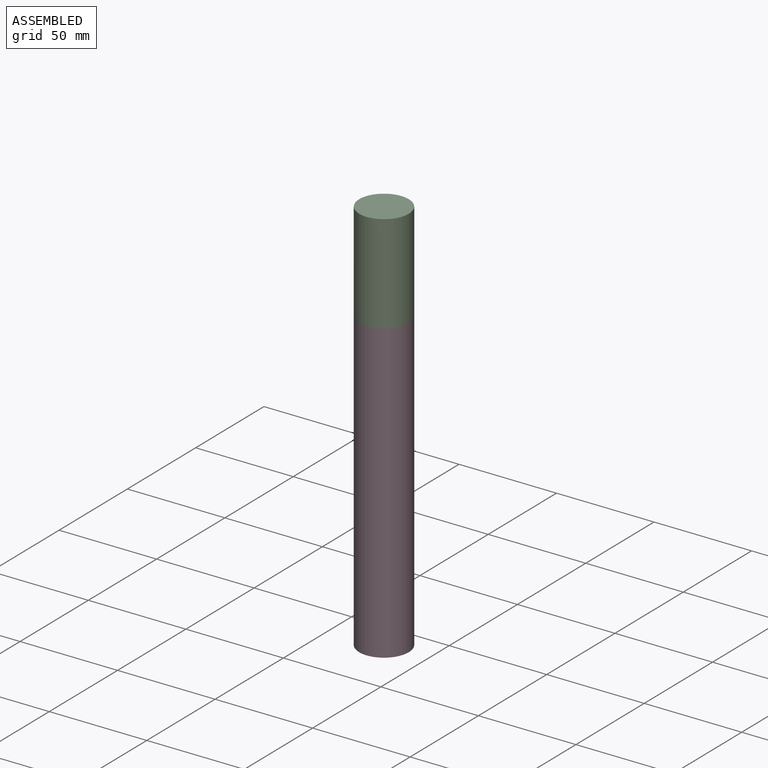
[diagram: assembled view]
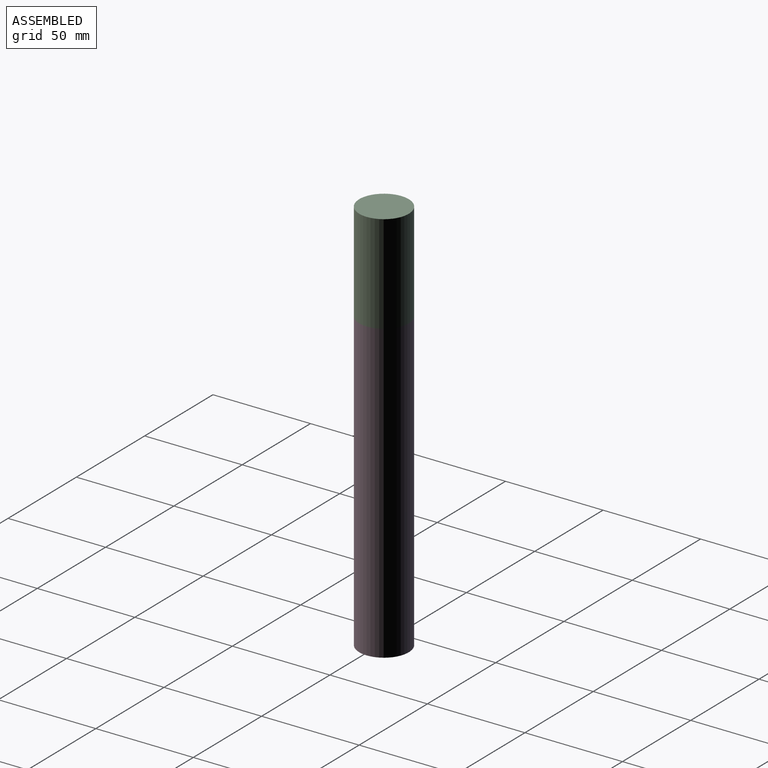
[diagram: assembled view, second angle]
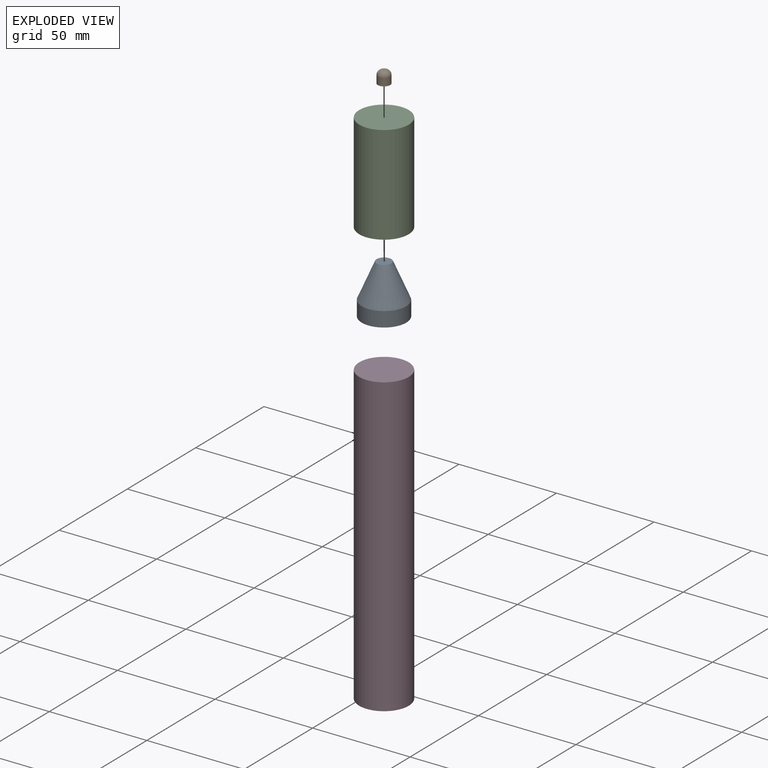
[diagram: exploded view]
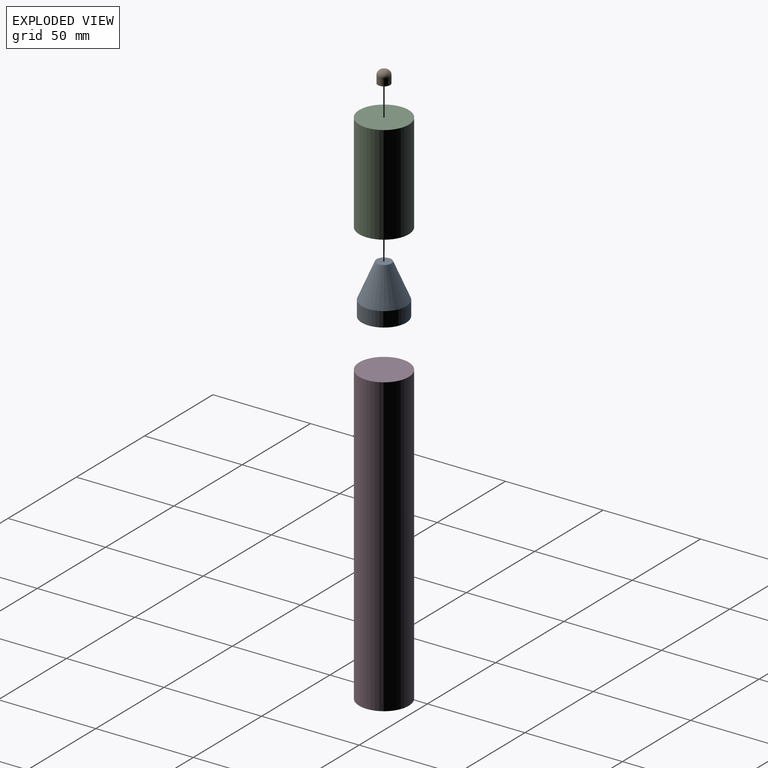
[diagram: exploded view, second angle]
ASSEMBLY  parts=4 mates=3
PART A: 4 faces, bbox 22.9x22.9x25.4 mm
  f0: cylinder r=11.43mm len=22.86mm, axis (0,0,1), area 547.2mm2, adj f2,f3
  f1: plane 7.62x7.62mm, normal (0,0,1), area 45.6mm2, adj f3
  f2: plane 22.86x22.86mm, normal (0,0,-1), area 410.4mm2, adj f0
  f3: cone r=3.81mm half-angle=23.2deg, axis (0,0,-1), area 926.2mm2, adj f0,f1
PART B: 4 faces, bbox 6.4x6.4x6.4 mm
  f0: cylinder r=3.17mm len=6.35mm, axis (0,0,1), area 76mm2, adj f2,f3
  f1: plane 1.27x1.27mm, normal (0,0,1), area 1.3mm2, adj f3
  f2: plane 6.35x6.35mm, normal (0,0,-1), area 31.7mm2, adj f0
  f3: torus R=0.64mm, axis (0,0,1), area 56.5mm2, adj f0,f1
PART C: 5 faces, bbox 25.4x25.4x50.8 mm
  f0: cylinder r=12.7mm len=50.8mm, axis (0,0,1), area 4053.7mm2, adj f1,f2
  f1: plane 25.4x25.4mm, normal (0,0,1), area 506.7mm2, adj f0
  f2: plane 25.4x25.4mm, normal (0,0,-1), area 182.4mm2, adj f0,f3
  f3: cylinder r=10.16mm len=48.26mm, axis (0,0,1), area 3080.8mm2, adj f2,f4
  f4: plane 20.32x20.32mm, normal (0,0,-1), area 324.3mm2, adj f3
PART D: 3 faces, bbox 25.4x25.4x152.4 mm
  f0: cylinder r=12.7mm len=152.4mm, axis (0,0,-1), area 12161mm2, adj f1,f2
  f1: plane 25.4x25.4mm, normal (0,0,1), area 506.7mm2, adj f0
  f2: plane 25.4x25.4mm, normal (0,0,-1), area 506.7mm2, adj f0
PLACE A rot(axis=(-0.14,-0.99,0.02),0deg) t=(-244.04,-9.56,181.99)mm
PLACE B rot(axis=(-0.14,-0.99,0.02),0deg) t=(-243.37,-77.03,207.39)mm
PLACE C rot(axis=(-0.14,-0.99,0.02),0deg) t=(-83.52,35.97,181.99)mm
PLACE D rot(axis=(-0.14,-0.99,0.02),0deg) t=(-188.47,-14.16,29.59)mm fixed
MATE fastened A.f0 <-> D.f0  axis (0,0,-1) through (-188.47,-14.16,181.99)mm
MATE fastened B.f0 <-> A.f0  axis (0,0,-1) through (-188.47,-14.16,207.39)mm
MATE slider D.f0 <-> C.f0  axis (0,0,1) through (-188.47,-14.16,181.99)mm
